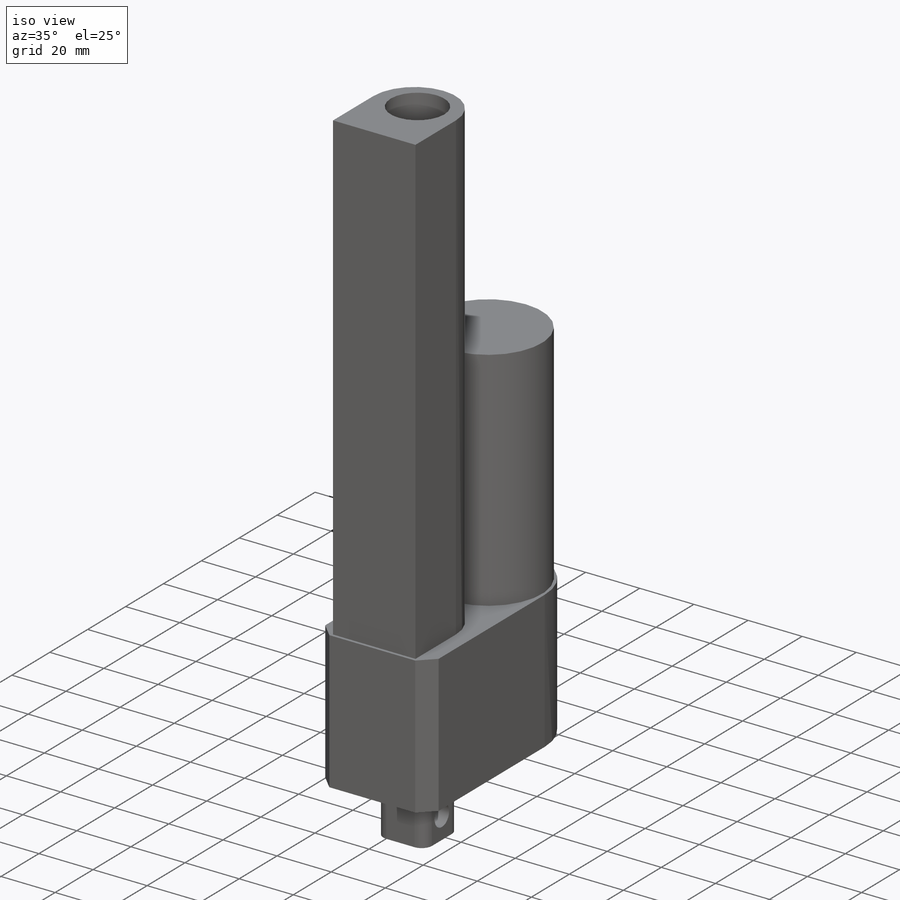
[diagram: iso view]
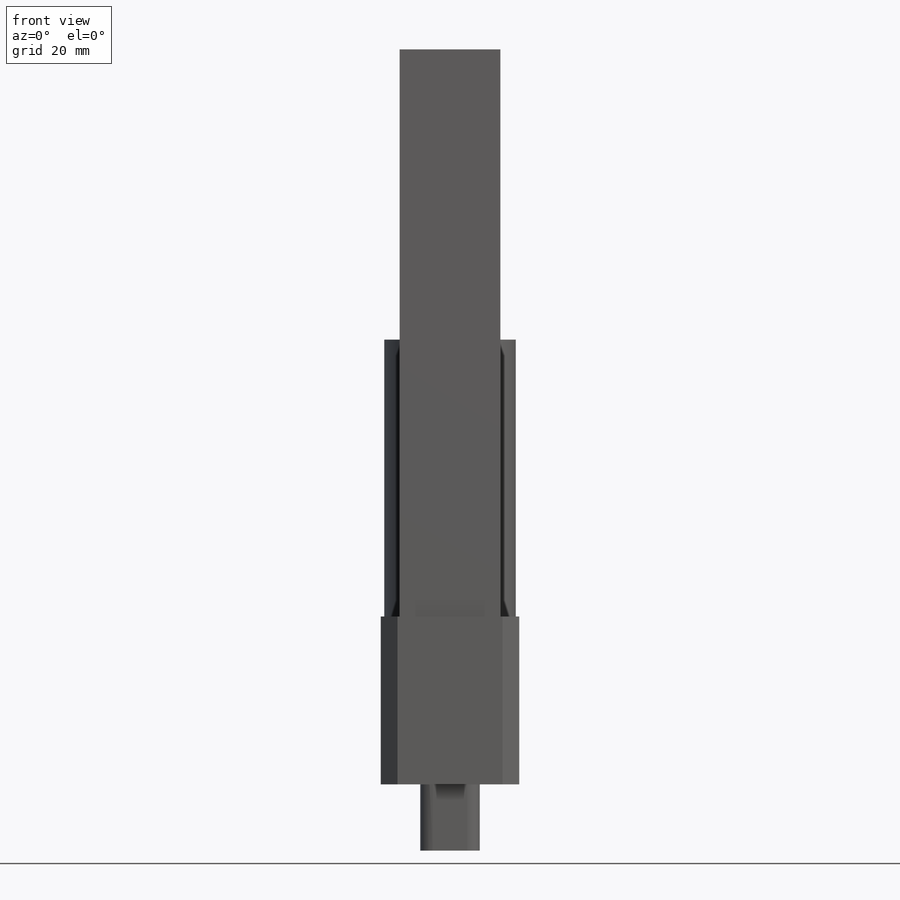
[diagram: front view]
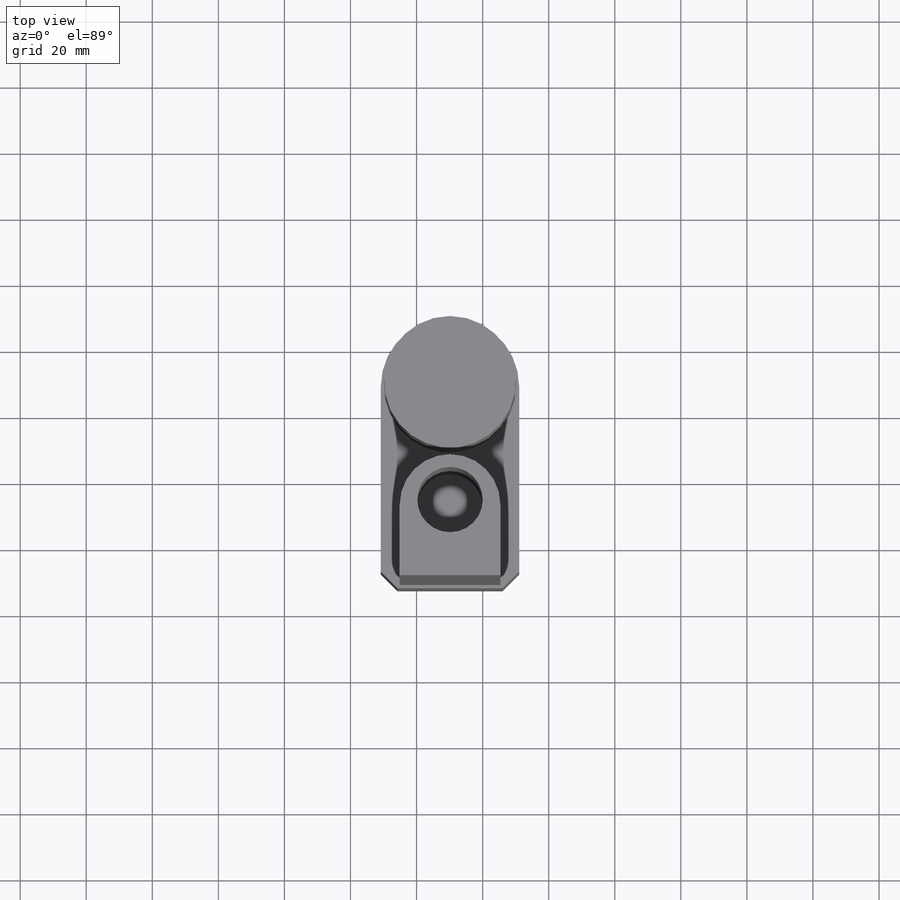
[diagram: top view]
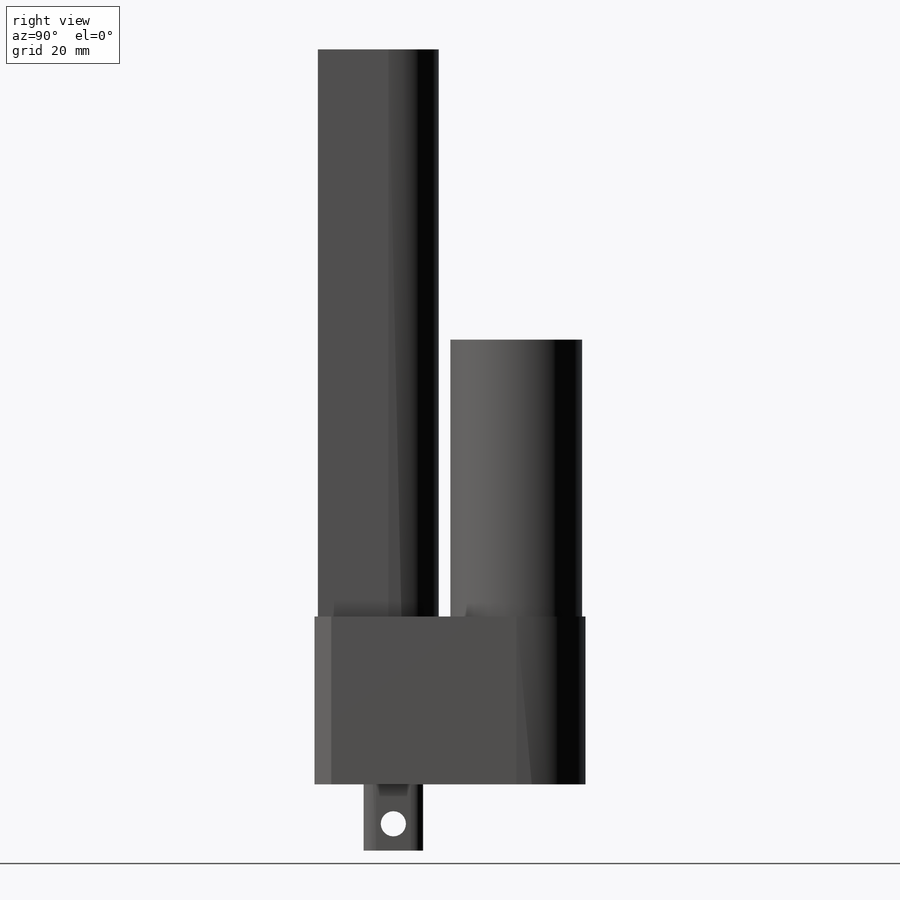
[diagram: right view]
SOLIDWORKS PART (.sldprt)
format: sldprt  version: not decoded by parser v0  size: 215,040 bytes
history: native  units: mm
features: sketch x7, extrude x4, cut_extrude x2, material x1 (+12 scaffold rows collapsed)
feature tree (26):
  scaffold x12  (default folders/planes/origin — collapsed)
  material  "Material <not specified>"
  sketch  "Sketch1"  dims[D3=20.9296mm D1=41.91mm D2=82.042mm D4=5.08mm D5=45.0deg D6=5.08mm D7=45.0deg]
  extrude  "Boss-Extrude1"  Depth=50.8mm
  sketch  "Sketch2"  dims[D1=39.878mm D2=20.955mm D3=20.955mm]
  extrude  "Boss-Extrude2"  Depth=83.82mm
  sketch  "Sketch3"  dims[D1=30.48mm D2=21.336mm]
  extrude  "Boss-Extrude3"  Depth=171.704mm
  sketch  "Sketch4"  dims[D4=3.81mm D1=18.034mm D2=18.034mm D3=14.859mm]
  extrude  "Boss-Extrude4"  Depth=20.066mm
  sketch  "Sketch5"  dims[D1=7.62mm D2=11.938mm]
  cut_extrude  "Cut-Extrude1"  Depth=20.066mm
  sketch  "3DSketch1"  dims[c1.D1=~14.410562mm c1.D2=19.812mm c2.D1=~18.458001mm c2.D2=19.812mm]
  sketch  "Sketch6"  dims[D1=19.812mm]
  cut_extrude  "Cut-Extrude2"  Depth=127mm
decode coverage: 13 of 13 modeling features carry decoded parameters
note: ~ marks probable driven/reference dimensions
note: suppression state not decoded; provenance and decode notes live in map.json
